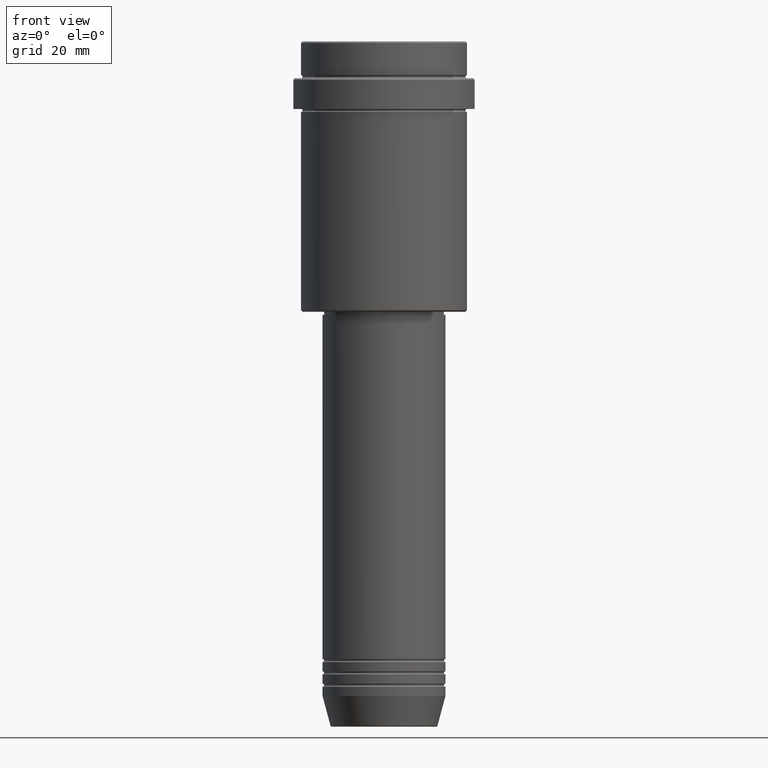
[diagram: clean part render]
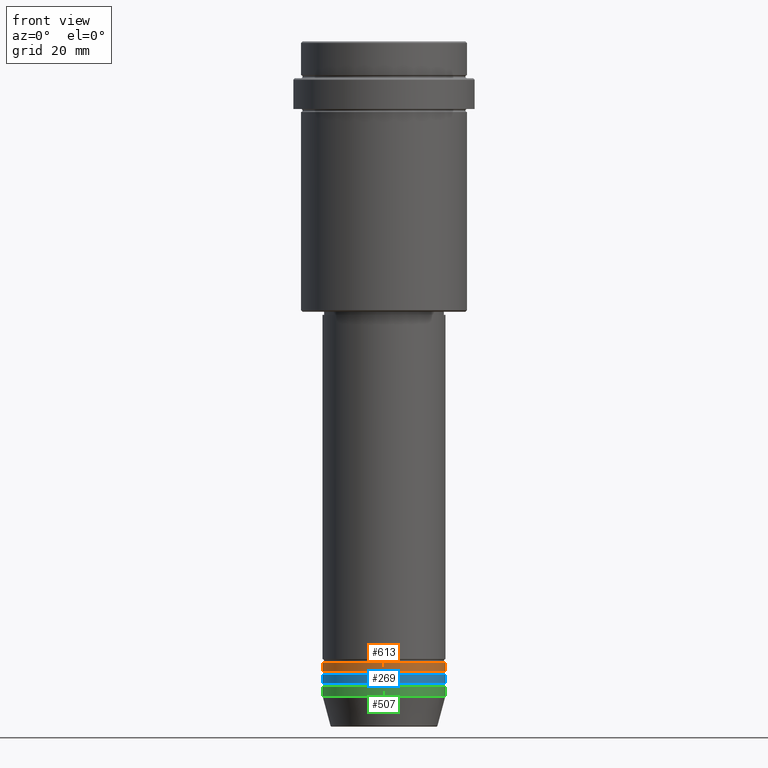
[diagram: same view with three faces highlighted in distinct colors, each labeled with its STEP entity id]
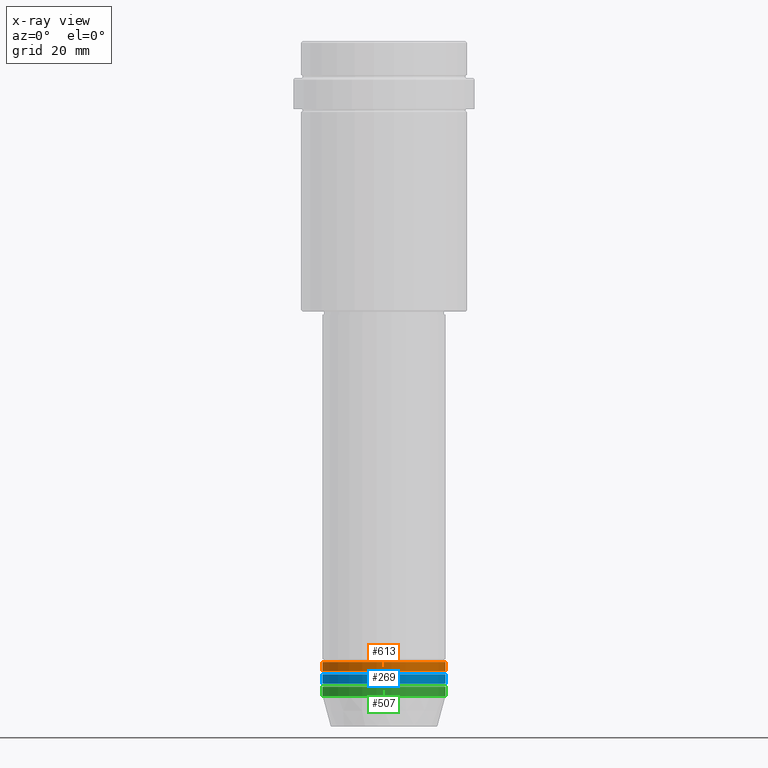
[diagram: x-ray of the same camera — body ghosted, the three highlighted faces saturated]
A machine part, front view with three faces highlighted in distinct colors.
The next image is the same camera in x-ray (body ghosted, the three faces saturated) — at least one of them is partly hidden behind the body in this view.
Their STEP definitions:

[orange] entity #613 — the highlighted cylindrical surface (partial cylindrical patch) has radius 20 mm, axis along (-0, -0, 1).
#5 = AXIS2_PLACEMENT_3D ( 'NONE', #1202, #211, #18 ) ;
#10 = CIRCLE ( 'NONE', #1019, 20.00000000000000000 ) ;
#18 = DIRECTION ( 'NONE',  ( 1.000000000000000000, 0.000000000000000000, 0.000000000000000000 ) ) ;
#38 = CARTESIAN_POINT ( 'NONE',  ( 20.00000000000000000, 0.000000000000000000, 0.000000000000000000 ) ) ;
#144 = CARTESIAN_POINT ( 'NONE',  ( 20.00000000000000000, 0.000000000000000000, -201.9999999999999432 ) ) ;
#211 = DIRECTION ( 'NONE',  ( -0.000000000000000000, -0.000000000000000000, 1.000000000000000000 ) ) ;
#291 = CARTESIAN_POINT ( 'NONE',  ( -20.00000000000000000, 2.449293598294706513E-15, -201.9999999999999432 ) ) ;
#393 = DIRECTION ( 'NONE',  ( -0.000000000000000000, -0.000000000000000000, 1.000000000000000000 ) ) ;
#414 = DIRECTION ( 'NONE',  ( 1.000000000000000000, 0.000000000000000000, 0.000000000000000000 ) ) ;
#471 = DIRECTION ( 'NONE',  ( -0.000000000000000000, -0.000000000000000000, 1.000000000000000000 ) ) ;
#474 = EDGE_CURVE ( 'NONE', #640, #607, #1378, .T. ) ;
#579 = FACE_OUTER_BOUND ( 'NONE', #1049, .T. ) ;
#607 = VERTEX_POINT ( 'NONE', #1121 ) ;
#613 = ADVANCED_FACE ( 'NONE', ( #579 ), #1255, .T. ) ;
#640 = VERTEX_POINT ( 'NONE', #1346 ) ;
#645 = ORIENTED_EDGE ( 'NONE', *, *, #662, .F. ) ;
#662 = EDGE_CURVE ( 'NONE', #640, #1012, #1311, .T. ) ;
#815 = CARTESIAN_POINT ( 'NONE',  ( 0.000000000000000000, 0.000000000000000000, 0.000000000000000000 ) ) ;
#818 = VERTEX_POINT ( 'NONE', #144 ) ;
#844 = EDGE_CURVE ( 'NONE', #607, #818, #1024, .T. ) ;
#957 = DIRECTION ( 'NONE',  ( -0.000000000000000000, -0.000000000000000000, 1.000000000000000000 ) ) ;
#1012 = VERTEX_POINT ( 'NONE', #291 ) ;
#1019 = AXIS2_PLACEMENT_3D ( 'NONE', #1295, #1410, #414 ) ;
#1024 = LINE ( 'NONE', #38, #1354 ) ;
#1049 = EDGE_LOOP ( 'NONE', ( #645, #1254, #1409, #1081 ) ) ;
#1081 = ORIENTED_EDGE ( 'NONE', *, *, #1158, .F. ) ;
#1083 = AXIS2_PLACEMENT_3D ( 'NONE', #815, #393, #1142 ) ;
#1121 = CARTESIAN_POINT ( 'NONE',  ( 20.00000000000000000, 0.000000000000000000, -204.9999999999999432 ) ) ;
#1142 = DIRECTION ( 'NONE',  ( 1.000000000000000000, 0.000000000000000000, 0.000000000000000000 ) ) ;
#1158 = EDGE_CURVE ( 'NONE', #1012, #818, #10, .T. ) ;
#1199 = VECTOR ( 'NONE', #957, 1000.000000000000000 ) ;
#1202 = CARTESIAN_POINT ( 'NONE',  ( 0.000000000000000000, 0.000000000000000000, -204.9999999999999432 ) ) ;
#1254 = ORIENTED_EDGE ( 'NONE', *, *, #474, .T. ) ;
#1255 = CYLINDRICAL_SURFACE ( 'NONE', #1083, 20.00000000000000000 ) ;
#1271 = CARTESIAN_POINT ( 'NONE',  ( -20.00000000000000000, 2.449293598294706513E-15, 0.000000000000000000 ) ) ;
#1295 = CARTESIAN_POINT ( 'NONE',  ( 0.000000000000000000, 0.000000000000000000, -201.9999999999999432 ) ) ;
#1311 = LINE ( 'NONE', #1271, #1199 ) ;
#1346 = CARTESIAN_POINT ( 'NONE',  ( -20.00000000000000000, 2.449293598294706513E-15, -204.9999999999999432 ) ) ;
#1354 = VECTOR ( 'NONE', #471, 1000.000000000000000 ) ;
#1378 = CIRCLE ( 'NONE', #5, 20.00000000000000000 ) ;
#1409 = ORIENTED_EDGE ( 'NONE', *, *, #844, .T. ) ;
#1410 = DIRECTION ( 'NONE',  ( -0.000000000000000000, -0.000000000000000000, 1.000000000000000000 ) ) ;

[blue] entity #269 — the highlighted cylindrical surface (partial cylindrical patch) has radius 20 mm, axis along (-0, -0, 1).
#31 = AXIS2_PLACEMENT_3D ( 'NONE', #656, #649, #1089 ) ;
#65 = EDGE_LOOP ( 'NONE', ( #1349, #1198, #267, #988 ) ) ;
#93 = CARTESIAN_POINT ( 'NONE',  ( 20.00000000000000000, 0.000000000000000000, -208.9999999999999147 ) ) ;
#101 = LINE ( 'NONE', #543, #487 ) ;
#195 = CIRCLE ( 'NONE', #1201, 20.00000000000000000 ) ;
#259 = EDGE_CURVE ( 'NONE', #292, #1192, #1272, .T. ) ;
#267 = ORIENTED_EDGE ( 'NONE', *, *, #259, .T. ) ;
#269 = ADVANCED_FACE ( 'NONE', ( #508 ), #841, .T. ) ;
#292 = VERTEX_POINT ( 'NONE', #93 ) ;
#307 = CARTESIAN_POINT ( 'NONE',  ( -20.00000000000000000, 2.449293598294706513E-15, -205.9999999999999147 ) ) ;
#388 = EDGE_CURVE ( 'NONE', #1124, #292, #1262, .T. ) ;
#394 = EDGE_CURVE ( 'NONE', #1124, #756, #101, .T. ) ;
#487 = VECTOR ( 'NONE', #1221, 1000.000000000000000 ) ;
#508 = FACE_OUTER_BOUND ( 'NONE', #65, .T. ) ;
#524 = DIRECTION ( 'NONE',  ( -0.000000000000000000, -0.000000000000000000, 1.000000000000000000 ) ) ;
#543 = CARTESIAN_POINT ( 'NONE',  ( -20.00000000000000000, 2.449293598294706513E-15, 0.000000000000000000 ) ) ;
#554 = AXIS2_PLACEMENT_3D ( 'NONE', #1283, #635, #1166 ) ;
#635 = DIRECTION ( 'NONE',  ( -0.000000000000000000, -0.000000000000000000, 1.000000000000000000 ) ) ;
#649 = DIRECTION ( 'NONE',  ( -0.000000000000000000, -0.000000000000000000, 1.000000000000000000 ) ) ;
#656 = CARTESIAN_POINT ( 'NONE',  ( 0.000000000000000000, 0.000000000000000000, -208.9999999999999147 ) ) ;
#693 = VECTOR ( 'NONE', #524, 1000.000000000000000 ) ;
#756 = VERTEX_POINT ( 'NONE', #307 ) ;
#841 = CYLINDRICAL_SURFACE ( 'NONE', #554, 20.00000000000000000 ) ;
#906 = DIRECTION ( 'NONE',  ( -0.000000000000000000, -0.000000000000000000, 1.000000000000000000 ) ) ;
#988 = ORIENTED_EDGE ( 'NONE', *, *, #1371, .F. ) ;
#1053 = CARTESIAN_POINT ( 'NONE',  ( 20.00000000000000000, 0.000000000000000000, 0.000000000000000000 ) ) ;
#1089 = DIRECTION ( 'NONE',  ( 1.000000000000000000, 0.000000000000000000, 0.000000000000000000 ) ) ;
#1123 = CARTESIAN_POINT ( 'NONE',  ( 0.000000000000000000, 0.000000000000000000, -205.9999999999999147 ) ) ;
#1124 = VERTEX_POINT ( 'NONE', #1403 ) ;
#1166 = DIRECTION ( 'NONE',  ( 1.000000000000000000, 0.000000000000000000, 0.000000000000000000 ) ) ;
#1192 = VERTEX_POINT ( 'NONE', #1196 ) ;
#1196 = CARTESIAN_POINT ( 'NONE',  ( 20.00000000000000000, 0.000000000000000000, -205.9999999999999147 ) ) ;
#1198 = ORIENTED_EDGE ( 'NONE', *, *, #388, .T. ) ;
#1201 = AXIS2_PLACEMENT_3D ( 'NONE', #1123, #906, #1228 ) ;
#1221 = DIRECTION ( 'NONE',  ( -0.000000000000000000, -0.000000000000000000, 1.000000000000000000 ) ) ;
#1228 = DIRECTION ( 'NONE',  ( 1.000000000000000000, 0.000000000000000000, 0.000000000000000000 ) ) ;
#1262 = CIRCLE ( 'NONE', #31, 20.00000000000000000 ) ;
#1272 = LINE ( 'NONE', #1053, #693 ) ;
#1283 = CARTESIAN_POINT ( 'NONE',  ( 0.000000000000000000, 0.000000000000000000, 0.000000000000000000 ) ) ;
#1349 = ORIENTED_EDGE ( 'NONE', *, *, #394, .F. ) ;
#1371 = EDGE_CURVE ( 'NONE', #756, #1192, #195, .T. ) ;
#1403 = CARTESIAN_POINT ( 'NONE',  ( -20.00000000000000000, 2.449293598294706513E-15, -208.9999999999999147 ) ) ;

[green] entity #507 — the highlighted cylindrical surface (partial cylindrical patch) has radius 20 mm, axis along (-0, -0, 1).
#88 = ORIENTED_EDGE ( 'NONE', *, *, #984, .F. ) ;
#120 = DIRECTION ( 'NONE',  ( -0.000000000000000000, -0.000000000000000000, 1.000000000000000000 ) ) ;
#152 = CARTESIAN_POINT ( 'NONE',  ( 20.00000000000000000, 0.000000000000000000, -213.0000000000000284 ) ) ;
#173 = AXIS2_PLACEMENT_3D ( 'NONE', #1055, #273, #843 ) ;
#179 = LINE ( 'NONE', #1392, #648 ) ;
#205 = LINE ( 'NONE', #427, #668 ) ;
#214 = ORIENTED_EDGE ( 'NONE', *, *, #857, .T. ) ;
#217 = VERTEX_POINT ( 'NONE', #152 ) ;
#227 = VERTEX_POINT ( 'NONE', #1244 ) ;
#256 = CARTESIAN_POINT ( 'NONE',  ( 0.000000000000000000, 0.000000000000000000, -213.0000000000000284 ) ) ;
#273 = DIRECTION ( 'NONE',  ( -0.000000000000000000, -0.000000000000000000, 1.000000000000000000 ) ) ;
#284 = AXIS2_PLACEMENT_3D ( 'NONE', #256, #120, #362 ) ;
#286 = CIRCLE ( 'NONE', #173, 20.00000000000000000 ) ;
#290 = VERTEX_POINT ( 'NONE', #529 ) ;
#316 = EDGE_CURVE ( 'NONE', #217, #290, #205, .T. ) ;
#329 = ORIENTED_EDGE ( 'NONE', *, *, #705, .F. ) ;
#362 = DIRECTION ( 'NONE',  ( 1.000000000000000000, 0.000000000000000000, 0.000000000000000000 ) ) ;
#387 = CARTESIAN_POINT ( 'NONE',  ( 0.000000000000000000, 0.000000000000000000, 0.000000000000000000 ) ) ;
#427 = CARTESIAN_POINT ( 'NONE',  ( 20.00000000000000000, 0.000000000000000000, 0.000000000000000000 ) ) ;
#507 = ADVANCED_FACE ( 'NONE', ( #663 ), #994, .T. ) ;
#529 = CARTESIAN_POINT ( 'NONE',  ( 20.00000000000000000, 0.000000000000000000, -210.0000000000000284 ) ) ;
#648 = VECTOR ( 'NONE', #749, 1000.000000000000000 ) ;
#663 = FACE_OUTER_BOUND ( 'NONE', #1170, .T. ) ;
#664 = VERTEX_POINT ( 'NONE', #1173 ) ;
#668 = VECTOR ( 'NONE', #859, 1000.000000000000000 ) ;
#705 = EDGE_CURVE ( 'NONE', #664, #227, #179, .T. ) ;
#706 = DIRECTION ( 'NONE',  ( 1.000000000000000000, 0.000000000000000000, 0.000000000000000000 ) ) ;
#749 = DIRECTION ( 'NONE',  ( -0.000000000000000000, -0.000000000000000000, 1.000000000000000000 ) ) ;
#843 = DIRECTION ( 'NONE',  ( 1.000000000000000000, 0.000000000000000000, 0.000000000000000000 ) ) ;
#857 = EDGE_CURVE ( 'NONE', #664, #217, #1285, .T. ) ;
#859 = DIRECTION ( 'NONE',  ( -0.000000000000000000, -0.000000000000000000, 1.000000000000000000 ) ) ;
#984 = EDGE_CURVE ( 'NONE', #227, #290, #286, .T. ) ;
#994 = CYLINDRICAL_SURFACE ( 'NONE', #1284, 20.00000000000000000 ) ;
#1055 = CARTESIAN_POINT ( 'NONE',  ( 0.000000000000000000, 0.000000000000000000, -210.0000000000000284 ) ) ;
#1117 = ORIENTED_EDGE ( 'NONE', *, *, #316, .T. ) ;
#1149 = DIRECTION ( 'NONE',  ( -0.000000000000000000, -0.000000000000000000, 1.000000000000000000 ) ) ;
#1170 = EDGE_LOOP ( 'NONE', ( #329, #214, #1117, #88 ) ) ;
#1173 = CARTESIAN_POINT ( 'NONE',  ( -20.00000000000000000, 2.449293598294706513E-15, -213.0000000000000284 ) ) ;
#1244 = CARTESIAN_POINT ( 'NONE',  ( -20.00000000000000000, 2.449293598294706513E-15, -210.0000000000000284 ) ) ;
#1284 = AXIS2_PLACEMENT_3D ( 'NONE', #387, #1149, #706 ) ;
#1285 = CIRCLE ( 'NONE', #284, 20.00000000000000000 ) ;
#1392 = CARTESIAN_POINT ( 'NONE',  ( -20.00000000000000000, 2.449293598294706513E-15, 0.000000000000000000 ) ) ;